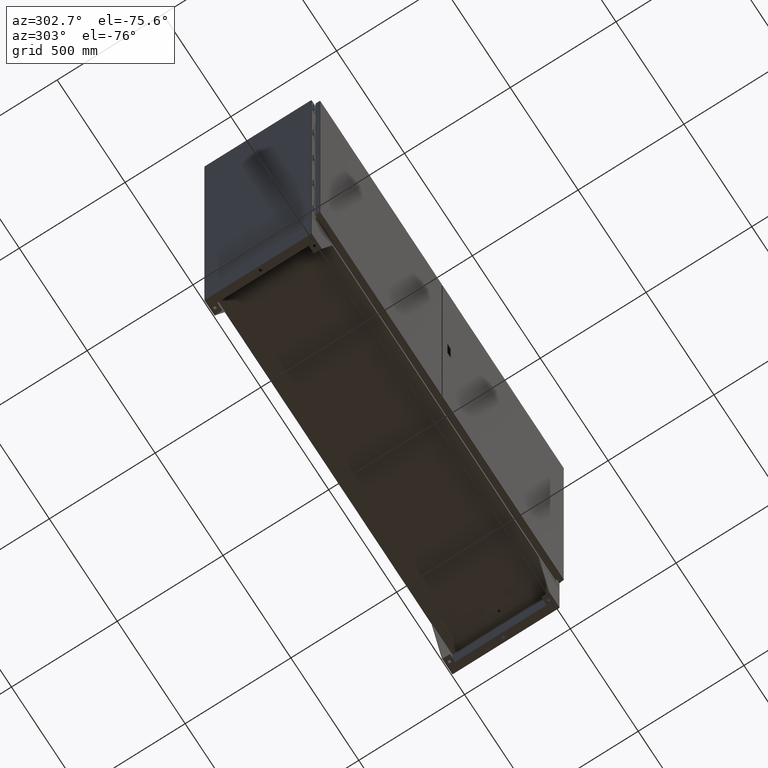
[diagram: clean part render]
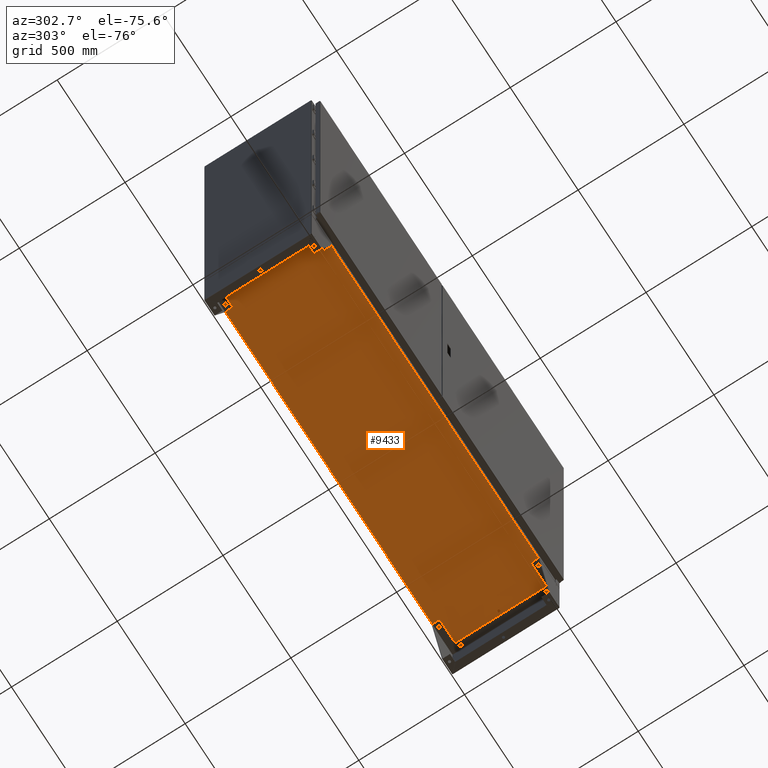
[diagram: same view with one face highlighted and labeled with its STEP entity id]
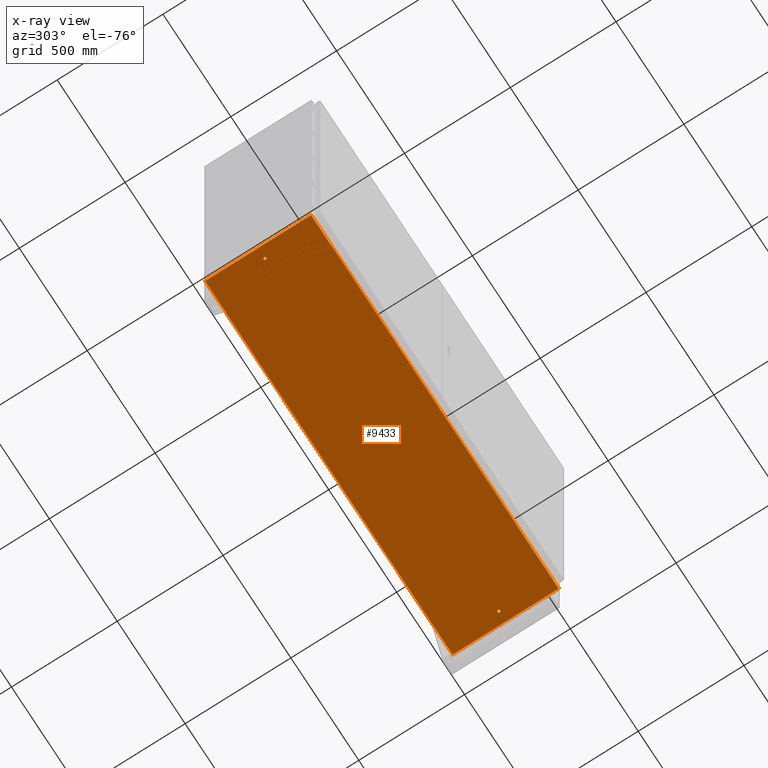
[diagram: x-ray of the same camera — body ghosted, the highlighted face saturated]
A machine part, auxiliary view. The second image highlights one B-rep face of the part: STEP entity #9433.
The next image is the same camera in x-ray: the body ghosted, the highlighted face saturated — about 0% of this face is hidden behind the body in this view.
In plain terms, the highlighted planar face has unit normal (0, 0, -1).
Its self-contained STEP definition (entity closure, byte-faithful):
#9433 = ADVANCED_FACE( '', ( #19288, #19289, #19290 ), #19291, .T. );
#19288 = FACE_BOUND( '', #39051, .T. );
#19289 = FACE_BOUND( '', #39052, .T. );
#19290 = FACE_OUTER_BOUND( '', #39053, .T. );
#19291 = PLANE( '', #39054 );
#39051 = EDGE_LOOP( '', ( #70796 ) );
#39052 = EDGE_LOOP( '', ( #70797 ) );
#39053 = EDGE_LOOP( '', ( #70798, #70799, #70800, #70801 ) );
#39054 = AXIS2_PLACEMENT_3D( '', #70802, #70803, #70804 );
#70796 = ORIENTED_EDGE( '', *, *, #82150, .T. );
#70797 = ORIENTED_EDGE( '', *, *, #76927, .T. );
#70798 = ORIENTED_EDGE( '', *, *, #80458, .T. );
#70799 = ORIENTED_EDGE( '', *, *, #79293, .T. );
#70800 = ORIENTED_EDGE( '', *, *, #76785, .T. );
#70801 = ORIENTED_EDGE( '', *, *, #73763, .T. );
#70802 = CARTESIAN_POINT( '', ( 0.000000000000000, 0.000000000000000, 0.000000000000000 ) );
#70803 = DIRECTION( '', ( 0.000000000000000, 0.000000000000000, 1.00000000000000 ) );
#70804 = DIRECTION( '', ( 1.00000000000000, 0.000000000000000, 0.000000000000000 ) );
#73763 = EDGE_CURVE( '', #84233, #84234, #84235, .T. );
#76785 = EDGE_CURVE( '', #89187, #84233, #89188, .T. );
#76927 = EDGE_CURVE( '', #89397, #89397, #89398, .T. );
#79293 = EDGE_CURVE( '', #92851, #89187, #92852, .T. );
#80458 = EDGE_CURVE( '', #84234, #92851, #94360, .T. );
#82150 = EDGE_CURVE( '', #96299, #96299, #96300, .T. );
#84233 = VERTEX_POINT( '', #101196 );
#84234 = VERTEX_POINT( '', #101197 );
#84235 = LINE( '', #101198, #101199 );
#89187 = VERTEX_POINT( '', #114729 );
#89188 = LINE( '', #114730, #114731 );
#89397 = VERTEX_POINT( '', #115253 );
#89398 = CIRCLE( '', #115254, 6.35000000000000 );
#92851 = VERTEX_POINT( '', #126006 );
#92852 = LINE( '', #126007, #126008 );
#94360 = LINE( '', #129859, #129860 );
#96299 = VERTEX_POINT( '', #135094 );
#96300 = CIRCLE( '', #135095, 6.35000000000000 );
#101196 = CARTESIAN_POINT( '', ( 911.733000000000, 252.666500000000, 0.000000000000000 ) );
#101197 = CARTESIAN_POINT( '', ( -911.733000000000, 252.666500000000, 0.000000000000000 ) );
#101198 = CARTESIAN_POINT( '', ( 911.733000000000, 252.666500000000, 0.000000000000000 ) );
#101199 = VECTOR( '', #136114, 1000.00000000000 );
#114729 = CARTESIAN_POINT( '', ( 911.733000000000, -249.186700000000, 0.000000000000000 ) );
#114730 = CARTESIAN_POINT( '', ( 911.733000000000, -252.666500000000, 0.000000000000000 ) );
#114731 = VECTOR( '', #137948, 1000.00000000000 );
#115253 = CARTESIAN_POINT( '', ( -854.583000000000, 1.33349999999995, 0.000000000000000 ) );
#115254 = AXIS2_PLACEMENT_3D( '', #138030, #138031, #138032 );
#126006 = CARTESIAN_POINT( '', ( -911.733000000000, -249.186700000000, 0.000000000000000 ) );
#126007 = CARTESIAN_POINT( '', ( -911.733000000000, -249.186700000000, 0.000000000000000 ) );
#126008 = VECTOR( '', #139228, 1000.00000000000 );
#129859 = CARTESIAN_POINT( '', ( -911.733000000000, 252.666500000000, 0.000000000000000 ) );
#129860 = VECTOR( '', #139922, 1000.00000000000 );
#135094 = CARTESIAN_POINT( '', ( 867.283000000000, 1.33349999999995, 0.000000000000000 ) );
#135095 = AXIS2_PLACEMENT_3D( '', #140545, #140546, #140547 );
#136114 = DIRECTION( '', ( -1.00000000000000, 6.08853153623460E-017, 0.000000000000000 ) );
#137948 = DIRECTION( '', ( 0.000000000000000, 1.00000000000000, 0.000000000000000 ) );
#138030 = CARTESIAN_POINT( '', ( -860.933000000000, 1.33349999999995, 0.000000000000000 ) );
#138031 = DIRECTION( '', ( 0.000000000000000, 0.000000000000000, -1.00000000000000 ) );
#138032 = DIRECTION( '', ( 1.00000000000000, 0.000000000000000, 0.000000000000000 ) );
#139228 = DIRECTION( '', ( 1.00000000000000, 0.000000000000000, 0.000000000000000 ) );
#139922 = DIRECTION( '', ( 0.000000000000000, -1.00000000000000, 0.000000000000000 ) );
#140545 = CARTESIAN_POINT( '', ( 860.933000000000, 1.33349999999995, 0.000000000000000 ) );
#140546 = DIRECTION( '', ( 0.000000000000000, 0.000000000000000, -1.00000000000000 ) );
#140547 = DIRECTION( '', ( 1.00000000000000, 0.000000000000000, 0.000000000000000 ) );